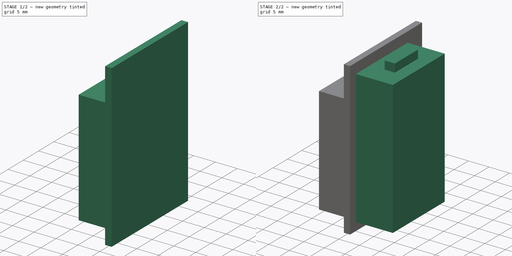
[diagram: build sequence overview — one tinted view per stage of 2, left to right]
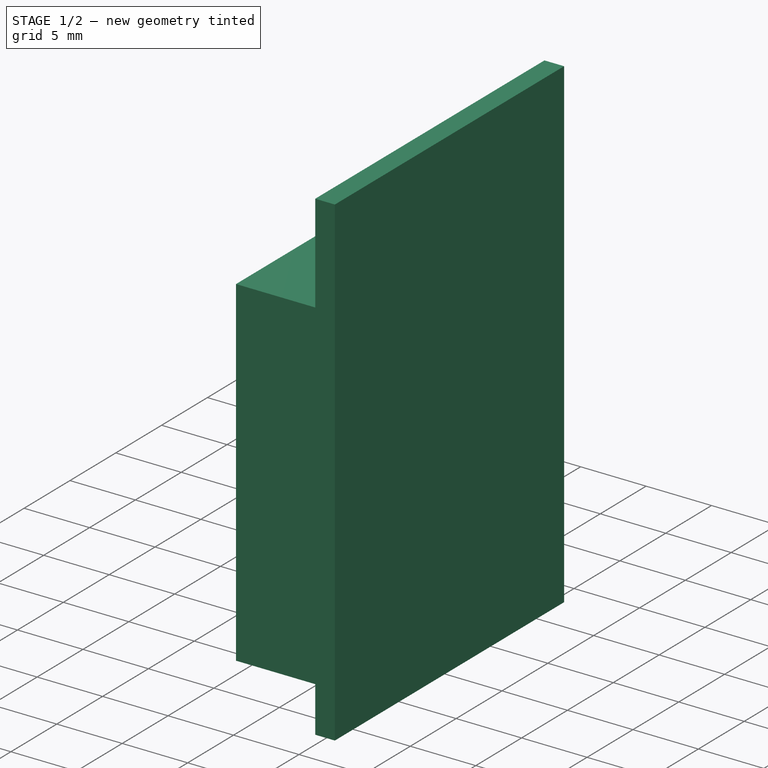
[diagram: stage 1 of 2 — iso view after this stage's code; geometry added in this stage tinted green]
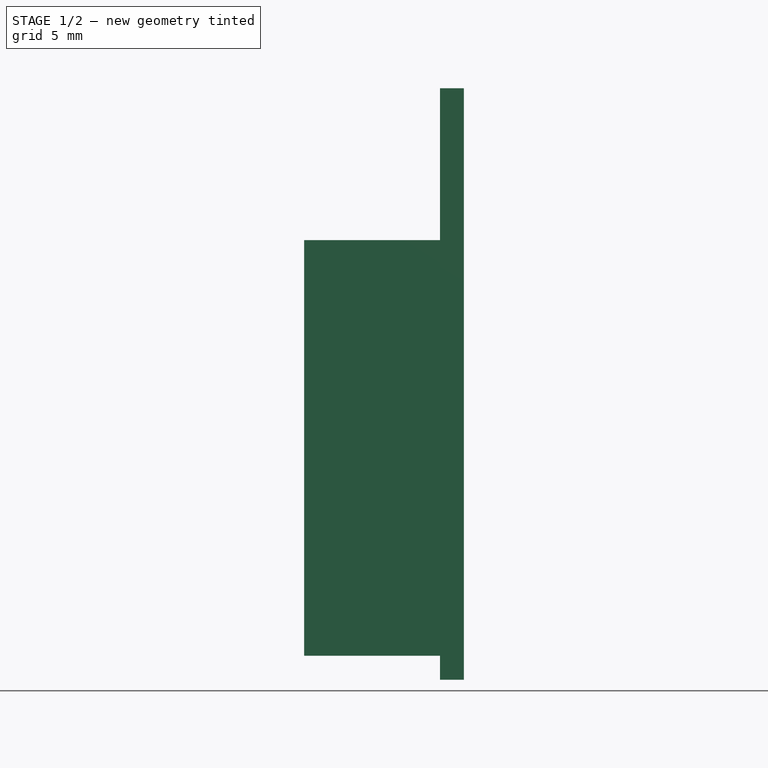
[diagram: stage 1 of 2 — front view after this stage's code; geometry added in this stage tinted green]
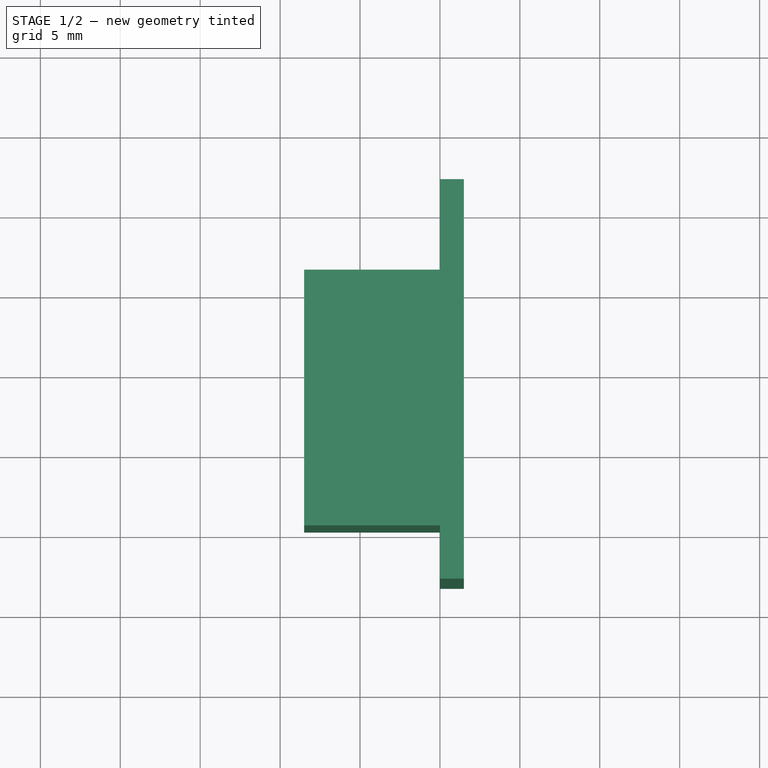
[diagram: stage 1 of 2 — top view after this stage's code; geometry added in this stage tinted green]
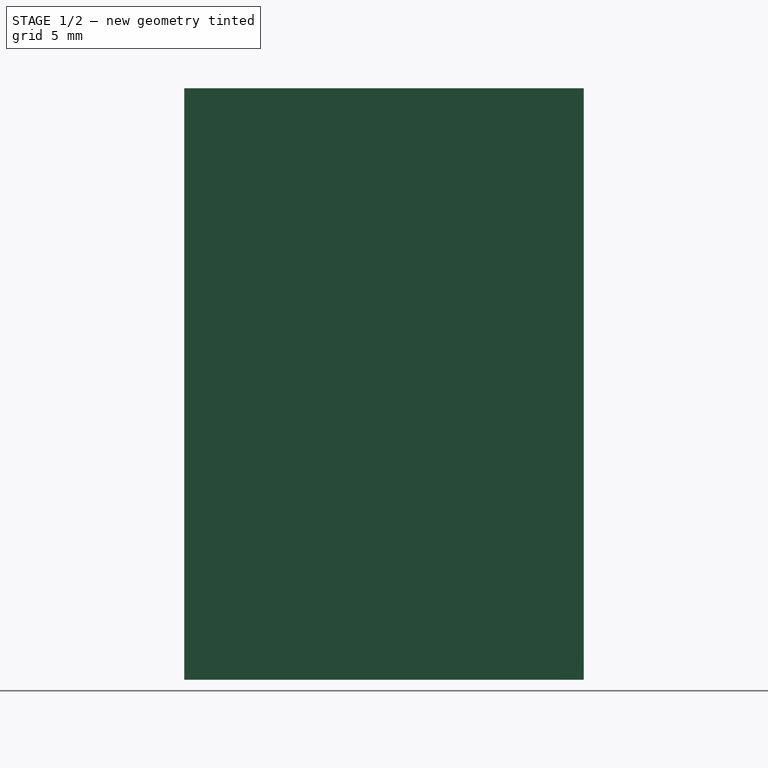
[diagram: stage 1 of 2 — right view after this stage's code; geometry added in this stage tinted green]
FCSTD DOCUMENT  (FreeCAD 0.18R4 (GitTag))
Label: my_tracker_model
License: All rights reserved
LicenseURL: http://en.wikipedia.org/wiki/All_rights_reserved
objects: Sketcher::SketchObject×4, PartDesign::Pad×4, PartDesign::Body×3
note: 15 computed .brp shape members not serialized (recipe doc carries the construction recipe); baked Part::Feature solids carry a one-line shape summary decoded from their .brp

FEATURE [Sketcher::SketchObject] Sketch  label="Protoboard"
  MapMode = 5
  Placement = pos=(0,0,0) rot=(0.57735,0.57735,0.57735;2.0944rad)
  Support = -> [YZ_Plane]
  sketch-geometry (4):
    g0: LineSegment StartX=-8.22613 StartY=16.5901 StartZ=0 EndX=-8.22613 EndY=-20.4099 EndZ=0
    g1: LineSegment StartX=-8.22613 StartY=-20.4099 StartZ=0 EndX=16.7739 EndY=-20.4099 EndZ=0
    g2: LineSegment StartX=16.7739 StartY=-20.4099 StartZ=0 EndX=16.7739 EndY=16.5901 EndZ=0
    g3: LineSegment StartX=16.7739 StartY=16.5901 StartZ=0 EndX=-8.22613 EndY=16.5901 EndZ=0
  constraints (10):
    c: Coincident(g3,g2)
    c: Coincident(g2,g1)
    c: Coincident(g1,g0)
    c: Coincident(g0,g3)
    c: Vertical(g2)
    c: Vertical(g0)
    c: Horizontal(g3)
    c: Horizontal(g1)
    c: DistanceY(g2,g2) = 37
    c: DistanceX(g3,g3) = 25
FEATURE [PartDesign::Pad] Pad
  Length = 1.5
  Length2 = 100
  Placement = pos=(0,0,0) rot=(0.57735,0.57735,0.57735;2.0944rad)
  Profile = -> Sketch
  Type = 0
FEATURE [Sketcher::SketchObject] Sketch001  label="MPU"
  ExternalGeometry = -> [Pad]
  MapMode = 5
  Placement = pos=(0,0,0) rot=(0.57735,0.57735,-0.57735;4.18879rad)
  Support = -> [Pad]
  sketch-geometry (4):
    g0: LineSegment StartX=-4.72613 StartY=18.9099 StartZ=0 EndX=11.2739 EndY=18.9099 EndZ=0
    g1: LineSegment StartX=11.2739 StartY=18.9099 StartZ=0 EndX=11.2739 EndY=-7.0901 EndZ=0
    g2: LineSegment StartX=11.2739 StartY=-7.0901 StartZ=0 EndX=-4.72613 EndY=-7.0901 EndZ=0
    g3: LineSegment StartX=-4.72613 StartY=-7.0901 StartZ=0 EndX=-4.72613 EndY=18.9099 EndZ=0
  constraints (12):
    c: Coincident(g0,g1)
    c: Coincident(g1,g2)
    c: Coincident(g2,g3)
    c: Coincident(g3,g0)
    c: Horizontal(g0)
    c: Horizontal(g2)
    c: Vertical(g1)
    c: Vertical(g3)
    c: DistanceX(g2,g2) = 16
    c: DistanceY(g1,g1) = 26
    c: DistanceX(g1,g-3) = 5.5
    c: DistanceY(g-3,g1) = 9.5
FEATURE [PartDesign::Pad] Pad001
  BaseFeature = -> Pad
  Length = 8.5
  Length2 = 100
  Placement = pos=(0,0,0) rot=(0.57735,0.57735,0.57735;2.0944rad)
  Profile = -> Sketch001
  Type = 0
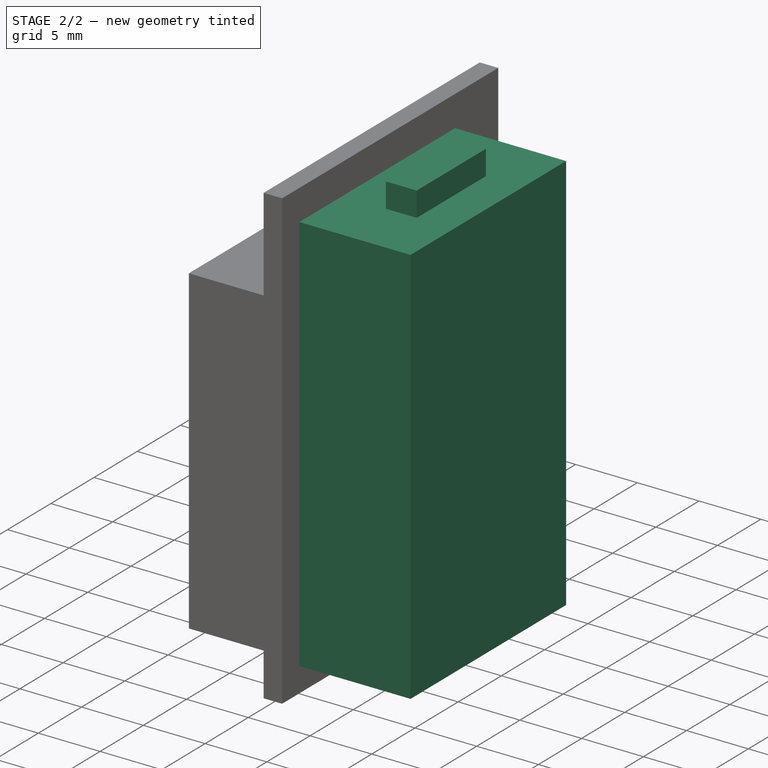
[diagram: stage 2 of 2 — iso view after this stage's code; geometry added in this stage tinted green]
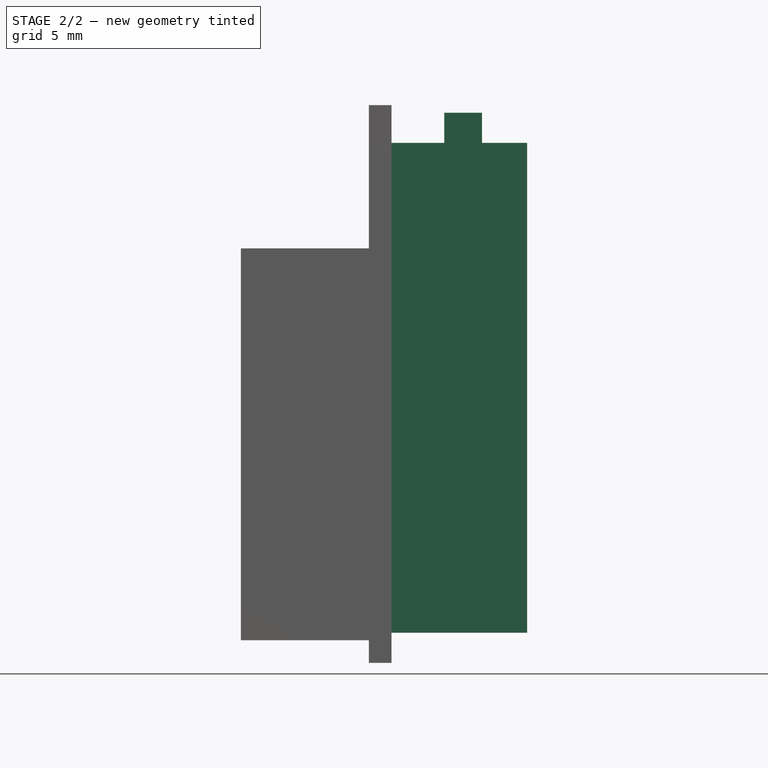
[diagram: stage 2 of 2 — front view after this stage's code; geometry added in this stage tinted green]
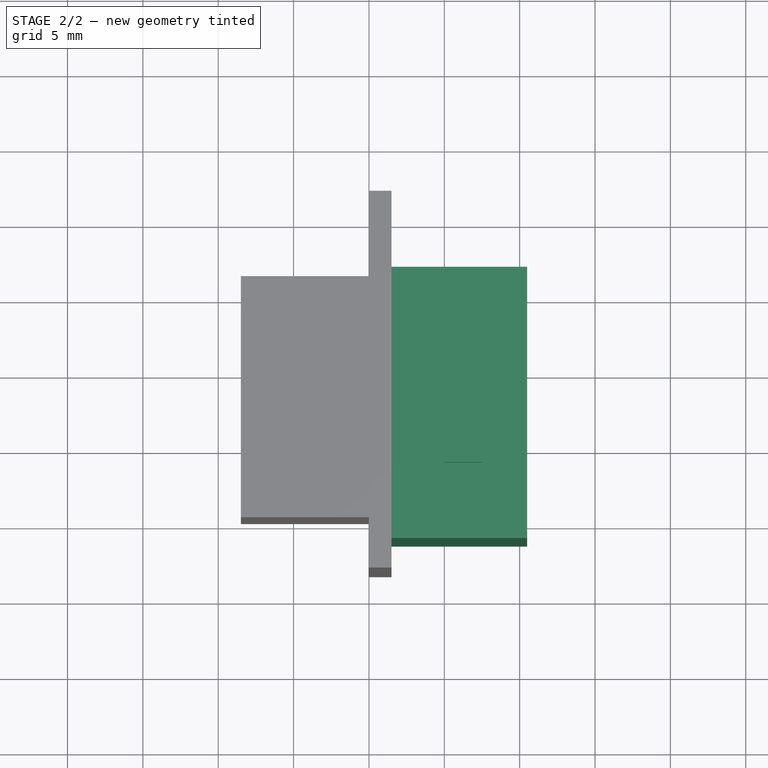
[diagram: stage 2 of 2 — top view after this stage's code; geometry added in this stage tinted green]
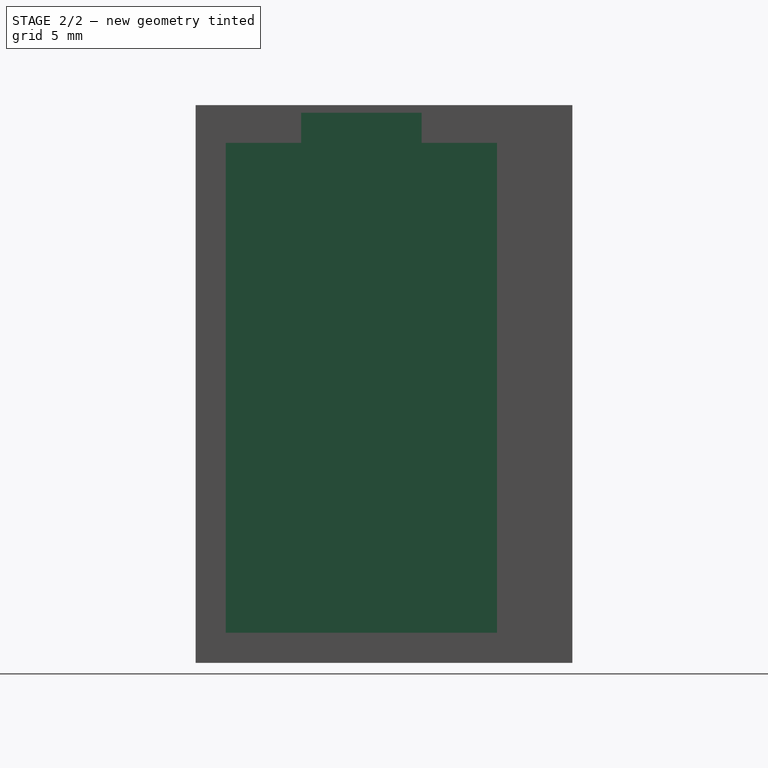
[diagram: stage 2 of 2 — right view after this stage's code; geometry added in this stage tinted green]
FEATURE [Sketcher::SketchObject] Sketch002  label="AVR"
  ExternalGeometry = -> [Pad001]
  MapMode = 5
  Placement = pos=(1.5,-3e-16,3e-16) rot=(0.57735,0.57735,0.57735;2.0944rad)
  Support = -> [Pad001]
  sketch-geometry (4):
    g0: LineSegment StartX=-6.22613 StartY=14.0901 StartZ=0 EndX=11.7739 EndY=14.0901 EndZ=0
    g1: LineSegment StartX=11.7739 StartY=14.0901 StartZ=0 EndX=11.7739 EndY=-18.4099 EndZ=0
    g2: LineSegment StartX=11.7739 StartY=-18.4099 StartZ=0 EndX=-6.22613 EndY=-18.4099 EndZ=0
    g3: LineSegment StartX=-6.22613 StartY=-18.4099 StartZ=0 EndX=-6.22613 EndY=14.0901 EndZ=0
  constraints (12):
    c: Coincident(g0,g1)
    c: Coincident(g1,g2)
    c: Coincident(g2,g3)
    c: Coincident(g3,g0)
    c: Horizontal(g0)
    c: Horizontal(g2)
    c: Vertical(g1)
    c: Vertical(g3)
    c: DistanceY(g1,g1) = 32.5
    c: DistanceX(g0,g0) = 18
    c: DistanceX(g1,g-3) = 5
    c: DistanceY(g-3,g1) = 2
FEATURE [PartDesign::Pad] Pad002
  BaseFeature = -> Pad001
  Length = 9
  Length2 = 100
  Placement = pos=(0,0,0) rot=(0.57735,0.57735,0.57735;2.0944rad)
  Profile = -> Sketch002
  Type = 0
FEATURE [Sketcher::SketchObject] Sketch003  label="micro_usb"
  ExternalGeometry = -> [Pad002]
  MapMode = 5
  Placement = pos=(-7.9e-15,4.6e-15,14.0901) rot=(0,0,-1;1.5708rad)
  Support = -> [Pad002]
  sketch-geometry (4):
    g0: LineSegment StartX=-6.77387 StartY=5 StartZ=0 EndX=1.22613 EndY=5 EndZ=0
    g1: LineSegment StartX=1.22613 StartY=5 StartZ=0 EndX=1.22613 EndY=7.5 EndZ=0
    g2: LineSegment StartX=1.22613 StartY=7.5 StartZ=0 EndX=-6.77387 EndY=7.5 EndZ=0
    g3: LineSegment StartX=-6.77387 StartY=7.5 StartZ=0 EndX=-6.77387 EndY=5 EndZ=0
  constraints (12):
    c: Coincident(g0,g1)
    c: Coincident(g1,g2)
    c: Coincident(g2,g3)
    c: Coincident(g3,g0)
    c: Horizontal(g0)
    c: Horizontal(g2)
    c: Vertical(g1)
    c: Vertical(g3)
    c: DistanceX(g0,g0) = 8
    c: DistanceY(g3,g3) = 2.5
    c: DistanceX(g-3,g2) = 5
    c: DistanceY(g2,g-3) = 3
FEATURE [PartDesign::Pad] Pad003
  BaseFeature = -> Pad002
  Length = 2
  Length2 = 100
  Placement = pos=(0,0,0) rot=(0.57735,0.57735,0.57735;2.0944rad)
  Profile = -> Sketch003
  Type = 0
FEATURE [PartDesign::Body] Body  label="EDtracker_electronics"
  Group = -> [Sketch,Pad,Sketch001,Pad001,Sketch002,Pad002,Sketch003,Pad003]
  Origin = -> Origin
  Placement = pos=(7.68397,-0.0001,3.86387) rot=(0.57735,0.57735,-0.57735;2.0944rad)
  Tip = -> Pad003
FEATURE [PartDesign::Body] Body001  label="case_body"
  Origin = -> Origin001
FEATURE [PartDesign::Body] Body002  label="case_door"
  Origin = -> Origin002
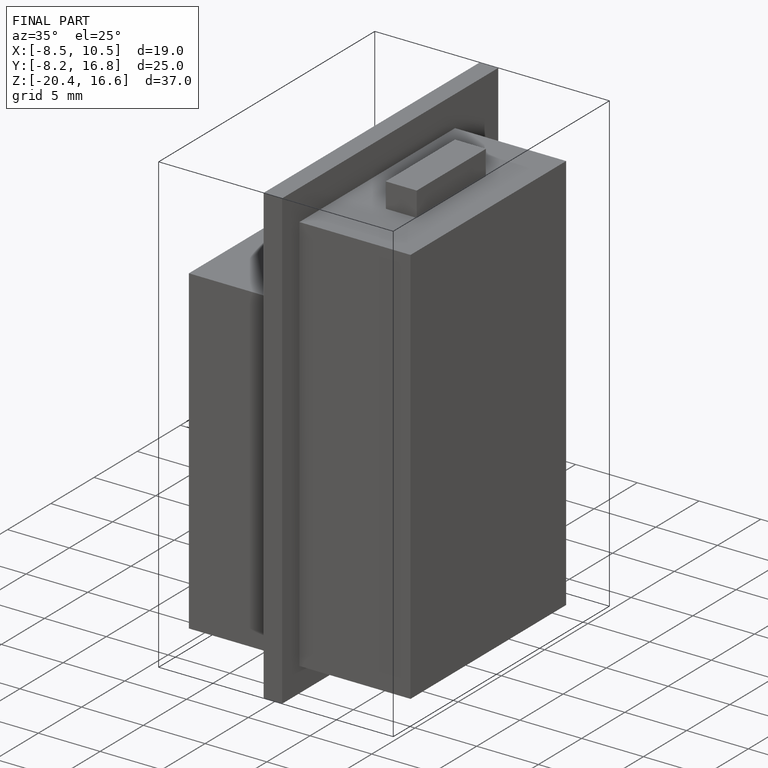
[diagram: finished part — iso view with bounding-box wireframe]
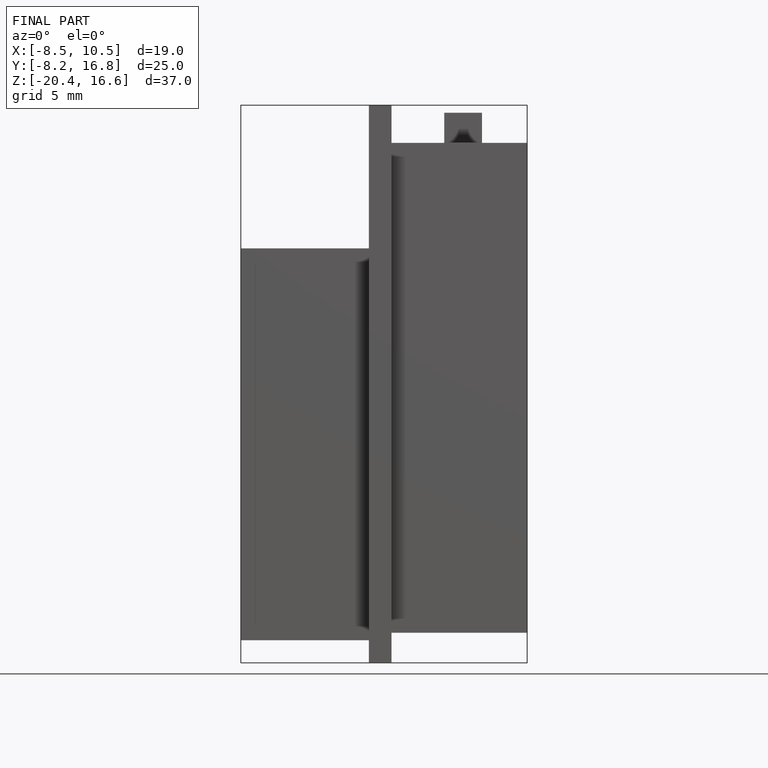
[diagram: finished part — front view with bounding-box wireframe]
